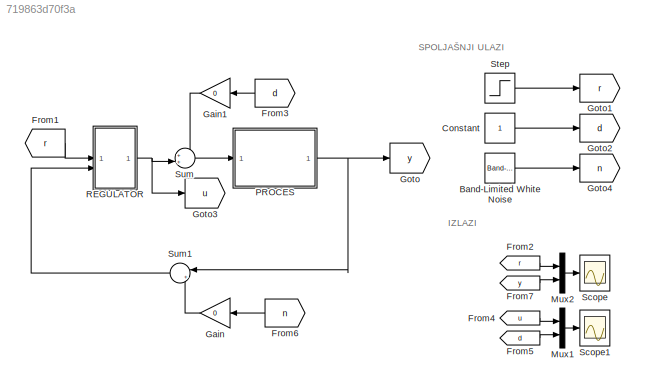
MODEL slx_719863d70f3a
KIND model
CONFIG AbsTol = auto
CONFIG EnableMultiTasking = off
CONFIG FixedStep = auto
CONFIG MaxStep = auto
CONFIG MinStep = auto
CONFIG RelTol = 1e-3
CONFIG SampleTimeConstraint = Unconstrained
CONFIG SolverName = VariableStepAuto
CONFIG StartTime = 0.0
CONFIG StopTime = 40
BLOCK [Reference] Band-Limited White Noise  REF=simulink/Sources/Band-Limited
White Noise
  Commented = on
  SourceBlock = simulink/Sources/Band-Limited\nWhite Noise
  SourceType = Band-Limited White Noise.
BLOCK [Constant] Constant
BLOCK [From] From1
  GotoTag = r
BLOCK [From] From2
  GotoTag = r
BLOCK [From] From3
  GotoTag = d
BLOCK [From] From4
  GotoTag = u
BLOCK [From] From5
  GotoTag = d
BLOCK [From] From6
  GotoTag = n
BLOCK [From] From7
  GotoTag = y
BLOCK [Gain] Gain
  Gain = 0
BLOCK [Gain] Gain1
  Gain = 0
BLOCK [Goto] Goto
  GotoTag = y
BLOCK [Goto] Goto1
  GotoTag = r
BLOCK [Goto] Goto2
  GotoTag = d
BLOCK [Goto] Goto3
  GotoTag = u
BLOCK [Goto] Goto4
  GotoTag = n
BLOCK [Mux] Mux1
  DisplayOption = bar
  Inputs = 2
BLOCK [Mux] Mux2
  DisplayOption = bar
  Inputs = 2
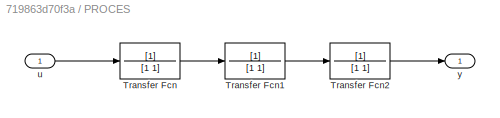
BLOCK [SubSystem] PROCES
BLOCK [TransferFcn] PROCES/Transfer Fcn
  Denominator = [1 1]
BLOCK [TransferFcn] PROCES/Transfer Fcn1
  Denominator = [1 1]
BLOCK [TransferFcn] PROCES/Transfer Fcn2
  Denominator = [1 1]
BLOCK [Inport] PROCES/u
BLOCK [Outport] PROCES/y
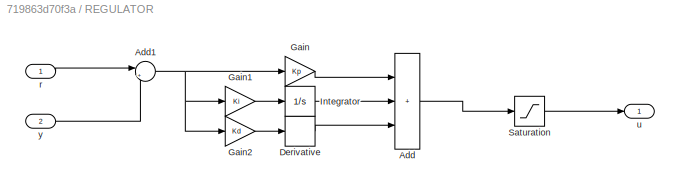
BLOCK [SubSystem] REGULATOR
BLOCK [Sum] REGULATOR/Add
  IconShape = rectangular
  Inputs = +++
BLOCK [Sum] REGULATOR/Add1
  Inputs = |+-
BLOCK [Derivative] REGULATOR/Derivative
BLOCK [Gain] REGULATOR/Gain
  Gain = Kp
BLOCK [Gain] REGULATOR/Gain1
  Gain = Ki
BLOCK [Gain] REGULATOR/Gain2
  Gain = Kd
BLOCK [Integrator] REGULATOR/Integrator
BLOCK [Saturate] REGULATOR/Saturation
  Commented = through
  LowerLimit = -umax
  UpperLimit = umax
BLOCK [Inport] REGULATOR/r
BLOCK [Outport] REGULATOR/u
BLOCK [Inport] REGULATOR/y
  Port = 2
BLOCK [Scope] Scope
  ActiveDisplayYMaximum = 4.417355118428727
  ActiveDisplayYMinimum = -3.7917033550607941
  Floating = off
  GraphicalSettings = {"Style":{"BackgroundColor":[0.12941176470588237,0.12941176470588237,0.12941176470588237],"AxesColor":[0.07058823529411765,0.07058823529411765,0.07058823529411765],"LabelsColor":[0.8509803921568627,0.8509803921568627,0.8509803921568627],"PreserveColors":false,"Visible":[true,true],"LineStyle":["-","-"],"LineWidth":[2,2],"BarWidth":[0.9,0.9],"LineColor":["auto","auto"],"LineFaceAlpha":[1,1],"LineEd...<+2100ch>
  MultipleDisplayCache = [{"MaxYLimMag":1.3299873643573885,"MaxYLimReal":4.417355118428727,"MinYLimMag":0,"MinYLimReal":-3.7917033550607941,"PlotAsMagnitudePhase":false,"ShowGrid":true,"ShowLegend":true,"Title":"%<SignalLabel>","YLabel":""}]
  NumInputPorts = 1
  ScopeFrameLocation = window
  ShowLegend = on
  WasSavedAsWebScope = on
  WindowPosition = [198.000000,125.000000,1330.000000,691.000000,]
BLOCK [Scope] Scope1
  ActiveDisplayYMaximum = 21.025074193059176
  ActiveDisplayYMinimum = -20.230336421025438
  DataLoggingVariableName = ScopeData1
  Floating = off
  GraphicalSettings = {"Style":{"BackgroundColor":[0.12941176470588237,0.12941176470588237,0.12941176470588237],"AxesColor":[0.07058823529411765,0.07058823529411765,0.07058823529411765],"LabelsColor":[0.8509803921568627,0.8509803921568627,0.8509803921568627],"PreserveColors":false,"Visible":[true,true,true,true,true,true,true],"LineStyle":["-","-","-","-","-","-","-"],"LineWidth":[2,2,2,1.5,1.5,1.5,1.5],"BarWidth":[0.9...<+2589ch>
  MultipleDisplayCache = [{"MaxYLimMag":21.025074193059176,"MaxYLimReal":21.025074193059176,"MinYLimMag":0,"MinYLimReal":-20.230336421025438,"PlotAsMagnitudePhase":false,"ShowGrid":true,"ShowLegend":false,"Title":"%<SignalLabel>","YLabel":""}]
  NumInputPorts = 1
  ScopeFrameLocation = window
  WasSavedAsWebScope = on
  WindowPosition = [-74.000000,-163.000000,1920.000000,955.000000,]
BLOCK [Step] Step
  SampleTime = 0
BLOCK [Sum] Sum
  Inputs = ++|
BLOCK [Sum] Sum1
  Inputs = |++
ANNOTATION (root): IZLAZI
ANNOTATION (root): SPOLJAŠNJI ULAZI
LINE Band-Limited White Noise:1 -> Goto4:1
LINE Constant:1 -> Goto2:1
LINE From1:1 -> REGULATOR:1
LINE From2:1 -> Mux2:1
LINE From3:1 -> Gain1:1
LINE From4:1 -> Mux1:1
LINE From5:1 -> Mux1:2
LINE From6:1 -> Gain:1
LINE From7:1 -> Mux2:2
LINE Gain1:1 -> Sum:1
LINE Gain:1 -> Sum1:2
LINE Mux1:1 -> Scope1:1
LINE Mux2:1 -> Scope:1
LINE PROCES/Transfer Fcn1:1 -> PROCES/Transfer Fcn2:1
LINE PROCES/Transfer Fcn2:1 -> PROCES/y:1
LINE PROCES/Transfer Fcn:1 -> PROCES/Transfer Fcn1:1
LINE PROCES/u:1 -> PROCES/Transfer Fcn:1
NET PROCES:1 -> Goto:1, Sum1:1
NET REGULATOR/Add1:1 -> REGULATOR/Gain1:1, REGULATOR/Gain2:1, REGULATOR/Gain:1
LINE REGULATOR/Add:1 -> REGULATOR/Saturation:1
LINE REGULATOR/Derivative:1 -> REGULATOR/Add:3
LINE REGULATOR/Gain1:1 -> REGULATOR/Integrator:1
LINE REGULATOR/Gain2:1 -> REGULATOR/Derivative:1
LINE REGULATOR/Gain:1 -> REGULATOR/Add:1
LINE REGULATOR/Integrator:1 -> REGULATOR/Add:2
LINE REGULATOR/Saturation:1 -> REGULATOR/u:1
LINE REGULATOR/r:1 -> REGULATOR/Add1:1
LINE REGULATOR/y:1 -> REGULATOR/Add1:2
NET REGULATOR:1 -> Goto3:1, Sum:2
LINE Step:1 -> Goto1:1
LINE Sum1:1 -> REGULATOR:2
LINE Sum:1 -> PROCES:1
note: NET lines group one-source signal fan-out (src -> all destinations, sorted); 1:1 wires keep LINE
